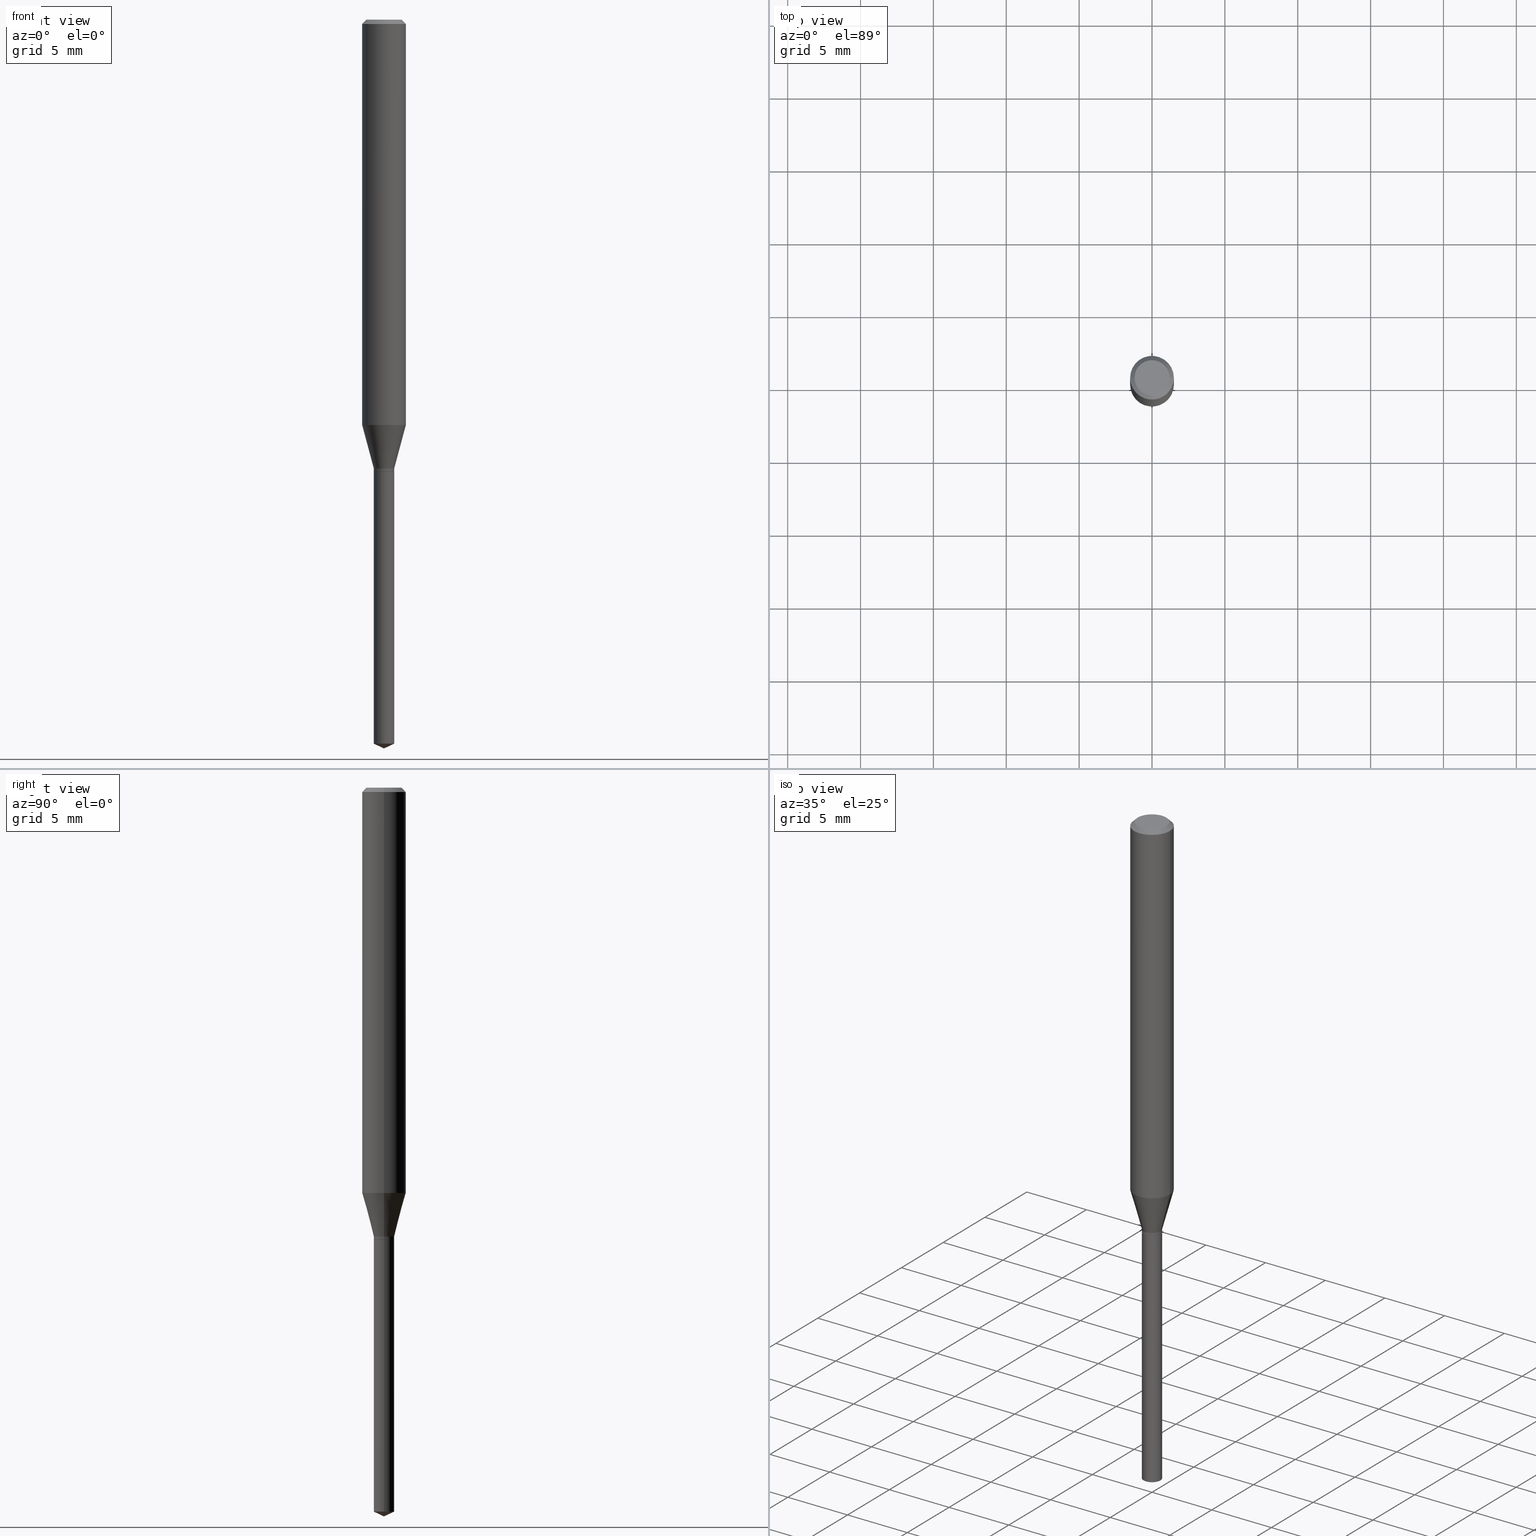
[diagram: canonical four-view strip — front | top / right | iso, engineering-drawing reading convention]
A machine part, canonical four-view strip (front | top / right | iso — engineering-drawing reading convention). The complete STEP part file that produces these views, byte-faithful:
ISO-10303-21;
HEADER;
FILE_DESCRIPTION (( 'STEP AP203' ),
    '1' );
FILE_NAME ('08163.STEP',
    '2024-04-24T13:38:31',
    ( '' ),
    ( '' ),
    'SwSTEP 2.0',
    'SolidWorks 2023',
    '' );
FILE_SCHEMA (( 'CONFIG_CONTROL_DESIGN' ));
ENDSEC;

DATA;
#1 = VERTEX_POINT ( 'NONE', #168 ) ;
#2 = ORIENTED_EDGE ( 'NONE', *, *, #242, .F. ) ;
#3 = DIRECTION ( 'NONE',  ( 1.000000000000000000, -6.982962677686266711E-15, 4.876176775795936353E-29 ) ) ;
#4 = ORIENTED_EDGE ( 'NONE', *, *, #289, .T. ) ;
#5 = PRODUCT_DEFINITION_SHAPE ( 'NONE', 'NONE',  #421 ) ;
#6 = EDGE_CURVE ( 'NONE', #427, #322, #435, .T. ) ;
#7 = FACE_OUTER_BOUND ( 'NONE', #396, .T. ) ;
#8 = MECHANICAL_CONTEXT ( 'NONE', #92, 'mechanical' ) ;
#9 = MANIFOLD_SOLID_BREP ( 'Body-Move/Copy2[1]', #409 ) ;
#10 = AXIS2_PLACEMENT_3D ( 'NONE', #323, #432, #29 ) ;
#11 = CARTESIAN_POINT ( 'NONE',  ( -0.02755000000000001892, -4.051981673134663170E-15, -1.220500000000000140 ) ) ;
#12 = DIRECTION ( 'NONE',  ( -2.445468806185136877E-29, 3.491481338843145188E-15, 1.000000000000000000 ) ) ;
#13 = CARTESIAN_POINT ( 'NONE',  ( 0.02755000000000001892, -4.453733595828316609E-15, -1.220500000000000140 ) ) ;
#14 = CARTESIAN_POINT ( 'NONE',  ( 0.05905000000000006771, -4.123439461173745257E-16, 2.879382386107503723E-30 ) ) ;
#15 = CARTESIAN_POINT ( 'NONE',  ( -0.05905000000000013710, -3.404086783016143258E-15, -1.095140399561580269 ) ) ;
#16 = DIRECTION ( 'NONE',  ( -2.445468806185136597E-29, 3.491481338843145583E-15, 1.000000000000000000 ) ) ;
#17 = AXIS2_PLACEMENT_3D ( 'NONE', #174, #408, #139 ) ;
#18 = CIRCLE ( 'NONE', #230, 0.05905000000000013710 ) ;
#19 = CARTESIAN_POINT ( 'NONE',  ( 2.965620021260715020E-29, -4.234119419615082783E-15, -1.212700000000000111 ) ) ;
#20 = ORIENTED_EDGE ( 'NONE', *, *, #129, .F. ) ;
#21 = APPROVAL_DATE_TIME ( #374, #328 ) ;
#22 = ORIENTED_EDGE ( 'NONE', *, *, #218, .F. ) ;
#23 = EDGE_LOOP ( 'NONE', ( #45, #425, #235, #284 ) ) ;
#24 = AXIS2_PLACEMENT_3D ( 'NONE', #111, #384, #298 ) ;
#25 = CIRCLE ( 'NONE', #488, 0.02755000000000001545 ) ;
#26 = COORDINATED_UNIVERSAL_TIME_OFFSET ( 5, 0, .BEHIND. ) ;
#27 = ORIENTED_EDGE ( 'NONE', *, *, #334, .F. ) ;
#28 = DIRECTION ( 'NONE',  ( 1.000000000000000000, -6.982962677686270655E-15, 0.000000000000000000 ) ) ;
#29 = DIRECTION ( 'NONE',  ( 1.000000000000000000, -6.982962677686256455E-15, 0.000000000000000000 ) ) ;
#30 = CARTESIAN_POINT ( 'NONE',  ( 4.815128079378533515E-29, -6.874726756182153211E-15, -1.968999999999999861 ) ) ;
#31 = CIRCLE ( 'NONE', #243, 0.02705000000000000113 ) ;
#32 = VERTEX_POINT ( 'NONE', #353 ) ;
#33 = DIRECTION ( 'NONE',  ( -2.445468806185136597E-29, 3.491481338843145583E-15, 1.000000000000000000 ) ) ;
#34 = ORIENTED_EDGE ( 'NONE', *, *, #289, .F. ) ;
#35 = APPROVAL_DATE_TIME ( #140, #66 ) ;
#36 = ADVANCED_FACE ( 'NONE', ( #125 ), #241, .T. ) ;
#37 = VECTOR ( 'NONE', #178, 39.37007874015747433 ) ;
#38 = CONICAL_SURFACE ( 'NONE', #397, 0.05904999999999999832, 0.7853981633974452814 ) ;
#39 = ORIENTED_EDGE ( 'NONE', *, *, #372, .T. ) ;
#40 = ORIENTED_EDGE ( 'NONE', *, *, #271, .T. ) ;
#41 = LINE ( 'NONE', #46, #133 ) ;
#42 = VERTEX_POINT ( 'NONE', #15 ) ;
#43 = ORIENTED_EDGE ( 'NONE', *, *, #248, .F. ) ;
#44 = DIRECTION ( 'NONE',  ( 0.000000000000000000, 0.000000000000000000, 1.000000000000000000 ) ) ;
#45 = ORIENTED_EDGE ( 'NONE', *, *, #319, .F. ) ;
#46 = CARTESIAN_POINT ( 'NONE',  ( -0.05904999999999999832, 3.711095515056362547E-16, -0.01181000000000007044 ) ) ;
#47 = AXIS2_PLACEMENT_3D ( 'NONE', #72, #420, #220 ) ;
#48 = LINE ( 'NONE', #89, #115 ) ;
#49 = CARTESIAN_POINT ( 'NONE',  ( -0.05905000000000006771, 4.195754854663396409E-16, -2.904631170795525045E-30 ) ) ;
#50 = LINE ( 'NONE', #236, #239 ) ;
#51 = VERTEX_POINT ( 'NONE', #206 ) ;
#52 = EDGE_LOOP ( 'NONE', ( #75, #88, #273 ) ) ;
#53 = DIRECTION ( 'NONE',  ( -2.445468806185136597E-29, 3.491481338843145583E-15, 1.000000000000000000 ) ) ;
#54 = EDGE_CURVE ( 'NONE', #42, #165, #388, .T. ) ;
#55 = EDGE_LOOP ( 'NONE', ( #331, #39 ) ) ;
#56 = CLOSED_SHELL ( 'NONE', ( #302, #269, #194, #177, #154, #400, #190, #392, #296, #278, #166, #101 ) ) ;
#57 = DIRECTION ( 'NONE',  ( 1.000000000000000000, -6.982962677686270655E-15, 0.000000000000000000 ) ) ;
#58 = VECTOR ( 'NONE', #12, 39.37007874015748143 ) ;
#59 = UNCERTAINTY_MEASURE_WITH_UNIT (LENGTH_MEASURE( 1.000000000000000082E-05 ), #426, 'distance_accuracy_value', 'NONE');
#60 = ORIENTED_EDGE ( 'NONE', *, *, #141, .T. ) ;
#61 = EDGE_CURVE ( 'NONE', #32, #121, #123, .T. ) ;
#62 = DATE_TIME_ROLE ( 'creation_date' ) ;
#63 = DIRECTION ( 'NONE',  ( -2.445468806185136597E-29, 3.491481338843145583E-15, 1.000000000000000000 ) ) ;
#64 = DIRECTION ( 'NONE',  ( 1.000000000000000000, -6.982962677686274599E-15, 0.000000000000000000 ) ) ;
#65 = CALENDAR_DATE ( 2024, 24, 4 ) ;
#66 = APPROVAL ( #415, 'UNSPECIFIED' ) ;
#67 = PERSON_AND_ORGANIZATION_ROLE ( 'design_supplier' ) ;
#68 = AXIS2_PLACEMENT_3D ( 'NONE', #416, #78, #192 ) ;
#69 = AXIS2_PLACEMENT_3D ( 'NONE', #90, #53, #382 ) ;
#70 = APPLICATION_PROTOCOL_DEFINITION ( 'international standard', 'config_control_design', 1994, #210 ) ;
#71 = CARTESIAN_POINT ( 'NONE',  ( 4.815128079378533515E-29, -6.874726756182153211E-15, -1.968999999999999861 ) ) ;
#72 = CARTESIAN_POINT ( 'NONE',  ( 2.965620021260715020E-29, -4.234119419615082783E-15, -1.212700000000000111 ) ) ;
#73 = CALENDAR_DATE ( 2024, 24, 4 ) ;
#74 = ORIENTED_EDGE ( 'NONE', *, *, #54, .F. ) ;
#75 = ORIENTED_EDGE ( 'NONE', *, *, #286, .F. ) ;
#76 = EDGE_LOOP ( 'NONE', ( #439, #456, #22, #153 ) ) ;
#77 = AXIS2_PLACEMENT_3D ( 'NONE', #279, #16, #82 ) ;
#78 = DIRECTION ( 'NONE',  ( -2.445468806185136597E-29, 3.491481338843145583E-15, 1.000000000000000000 ) ) ;
#79 = FACE_OUTER_BOUND ( 'NONE', #267, .T. ) ;
#80 = DIRECTION ( 'NONE',  ( 1.000000000000000000, -6.982962677686269866E-15, 0.000000000000000000 ) ) ;
#81 = PERSON ( 'UNSPECIFIED', 'UNSPECIFIED', 'UNSPECIFIED', ('UNSPECIFIED'), ('UNSPECIFIED'), ('UNSPECIFIED') ) ;
#82 = DIRECTION ( 'NONE',  ( 1.000000000000000000, -6.982962677686265922E-15, 4.876176775795936353E-29 ) ) ;
#83 = ORIENTED_EDGE ( 'NONE', *, *, #483, .T. ) ;
#84 = SECURITY_CLASSIFICATION ( '', '', #146 ) ;
#85 = DIRECTION ( 'NONE',  ( 1.000000000000000000, -6.982962677686264344E-15, 0.000000000000000000 ) ) ;
#86 = CARTESIAN_POINT ( 'NONE',  ( 2.984694677948959472E-29, -4.261352974058059816E-15, -1.220500000000000140 ) ) ;
#87 = CYLINDRICAL_SURFACE ( 'NONE', #77, 0.02755000000000001545 ) ;
#88 = ORIENTED_EDGE ( 'NONE', *, *, #224, .T. ) ;
#89 = CARTESIAN_POINT ( 'NONE',  ( -0.02755000000000001545, -4.038364895913174653E-15, -1.212700000000000111 ) ) ;
#90 = CARTESIAN_POINT ( 'NONE',  ( 2.984694677948959472E-29, -4.261352974058059816E-15, -1.220500000000000140 ) ) ;
#91 = ORIENTED_EDGE ( 'NONE', *, *, #61, .T. ) ;
#92 = APPLICATION_CONTEXT ( 'configuration controlled 3d designs of mechanical parts and assemblies' ) ;
#93 = DIRECTION ( 'NONE',  ( -1.000000000000000000, 6.982962677686266711E-15, 0.000000000000000000 ) ) ;
#94 = ORIENTED_EDGE ( 'NONE', *, *, #446, .T. ) ;
#95 = DIRECTION ( 'NONE',  ( -2.445468806185136597E-29, 3.491481338843145583E-15, 1.000000000000000000 ) ) ;
#96 = CONICAL_SURFACE ( 'NONE', #299, 0.02705000000000000113, 0.7853981633974311816 ) ;
#97 = ORIENTED_EDGE ( 'NONE', *, *, #286, .T. ) ;
#98 = EDGE_CURVE ( 'NONE', #343, #290, #113, .T. ) ;
#99 = CIRCLE ( 'NONE', #377, 0.05904999999999999832 ) ;
#100 = APPROVAL_PERSON_ORGANIZATION ( #460, #66, #263 ) ;
#101 = ADVANCED_FACE ( 'NONE', ( #130 ), #96, .T. ) ;
#102 = LENGTH_MEASURE_WITH_UNIT ( LENGTH_MEASURE( 0.02539999999999999897 ), #132 );
#103 = DIRECTION ( 'NONE',  ( 0.9063077870366559319, -4.853149677051466353E-15, 0.4226182617406865627 ) ) ;
#104 = ORIENTED_EDGE ( 'NONE', *, *, #184, .F. ) ;
#105 = CARTESIAN_POINT ( 'NONE',  ( 4.132873053354867254E-48, -5.900647395337818946E-34, -1.690012582823346072E-19 ) ) ;
#106 = ORIENTED_EDGE ( 'NONE', *, *, #465, .F. ) ;
#107 = AXIS2_PLACEMENT_3D ( 'NONE', #231, #391, #157 ) ;
#108 = AXIS2_PLACEMENT_3D ( 'NONE', #176, #484, #138 ) ;
#109 = DIRECTION ( 'NONE',  ( -0.7071067811865453523, 2.468850131082234184E-15, -0.7071067811865496822 ) ) ;
#110 = CARTESIAN_POINT ( 'NONE',  ( 0.000000000000000000, 0.000000000000000000, 0.000000000000000000 ) ) ;
#111 = CARTESIAN_POINT ( 'NONE',  ( 2.985917412352052273E-29, -4.263098714727481320E-15, -1.221000000000000085 ) ) ;
#112 = VERTEX_POINT ( 'NONE', #431 ) ;
#113 = CIRCLE ( 'NONE', #362, 0.02755000000000000157 ) ;
#114 = FACE_OUTER_BOUND ( 'NONE', #376, .T. ) ;
#115 = VECTOR ( 'NONE', #351, 39.37007874015747433 ) ;
#116 = ORIENTED_EDGE ( 'NONE', *, *, #319, .T. ) ;
#117 = EDGE_CURVE ( 'NONE', #121, #311, #471, .T. ) ;
#118 = CARTESIAN_POINT ( 'NONE',  ( 0.05905000000000013710, -4.236006214599858855E-15, -1.095140399561580269 ) ) ;
#119 = CARTESIAN_POINT ( 'NONE',  ( 2.678131685520970717E-29, -3.823662268482483934E-15, -1.095140399561580269 ) ) ;
#120 = CIRCLE ( 'NONE', #208, 0.04724000000000000421 ) ;
#121 = VERTEX_POINT ( 'NONE', #11 ) ;
#122 =( GEOMETRIC_REPRESENTATION_CONTEXT ( 3 ) GLOBAL_UNCERTAINTY_ASSIGNED_CONTEXT ( ( #59 ) ) GLOBAL_UNIT_ASSIGNED_CONTEXT ( ( #426, #282, #274 ) ) REPRESENTATION_CONTEXT ( 'NONE', 'WORKASPACE' ) );
#123 = LINE ( 'NONE', #158, #306 ) ;
#124 = CARTESIAN_POINT ( 'NONE',  ( 2.985917412352051713E-29, -4.263098714727481320E-15, -1.221000000000000085 ) ) ;
#125 = FACE_OUTER_BOUND ( 'NONE', #270, .T. ) ;
#126 = CARTESIAN_POINT ( 'NONE',  ( 0.02705000000000000113, -4.451987855158895106E-15, -1.221000000000000085 ) ) ;
#127 = AXIS2_PLACEMENT_3D ( 'NONE', #403, #211, #57 ) ;
#128 = APPROVAL_STATUS ( 'not_yet_approved' ) ;
#129 = EDGE_CURVE ( 'NONE', #1, #463, #149, .T. ) ;
#130 = FACE_OUTER_BOUND ( 'NONE', #355, .T. ) ;
#131 = DIRECTION ( 'NONE',  ( 1.000000000000000000, -6.982962677686273810E-15, 0.000000000000000000 ) ) ;
#132 =( LENGTH_UNIT ( ) NAMED_UNIT ( * ) SI_UNIT ( $, .METRE. ) );
#133 = VECTOR ( 'NONE', #109, 39.37007874015748143 ) ;
#134 = DIRECTION ( 'NONE',  ( -0.9063077870366559319, 7.915267918739013053E-15, 0.4226182617406865627 ) ) ;
#135 = VECTOR ( 'NONE', #134, 39.37007874015748143 ) ;
#136 = CARTESIAN_POINT ( 'NONE',  ( 0.02755000000000000157, -4.455479336497738113E-15, -1.221000000000000085 ) ) ;
#137 = DIRECTION ( 'NONE',  ( -2.445468806185136597E-29, 3.491481338843145583E-15, 1.000000000000000000 ) ) ;
#138 = DIRECTION ( 'NONE',  ( 1.000000000000000000, -6.982962677686256455E-15, 0.000000000000000000 ) ) ;
#139 = DIRECTION ( 'NONE',  ( 1.000000000000000000, -6.982962677686265922E-15, 0.000000000000000000 ) ) ;
#140 = DATE_AND_TIME ( #486, #370 ) ;
#141 = EDGE_CURVE ( 'NONE', #343, #112, #424, .T. ) ;
#142 = CONICAL_SURFACE ( 'NONE', #68, 0.02755000000000001545, 0.2617993877991500740 ) ;
#143 = CARTESIAN_POINT ( 'NONE',  ( 8.265746106709734507E-48, -1.180129479067563789E-33, -3.380025165646692144E-19 ) ) ;
#144 = SHAPE_DEFINITION_REPRESENTATION ( #5, #293 ) ;
#145 = CARTESIAN_POINT ( 'NONE',  ( 0.000000000000000000, 0.000000000000000000, 0.000000000000000000 ) ) ;
#146 = SECURITY_CLASSIFICATION_LEVEL ( 'unclassified' ) ;
#147 = ORIENTED_EDGE ( 'NONE', *, *, #218, .T. ) ;
#148 = CC_DESIGN_PERSON_AND_ORGANIZATION_ASSIGNMENT ( #257, #490, ( #84 ) ) ;
#149 = CIRCLE ( 'NONE', #450, 0.04724000000000000421 ) ;
#150 = DIRECTION ( 'NONE',  ( -2.445468806185136597E-29, 3.491481338843145583E-15, 1.000000000000000000 ) ) ;
#151 = PLANE ( 'NONE',  #276 ) ;
#152 = AXIS2_PLACEMENT_3D ( 'NONE', #352, #466, #472 ) ;
#153 = ORIENTED_EDGE ( 'NONE', *, *, #383, .F. ) ;
#154 = ADVANCED_FACE ( 'NONE', ( #461 ), #265, .T. ) ;
#155 = ORIENTED_EDGE ( 'NONE', *, *, #6, .F. ) ;
#156 = ORIENTED_EDGE ( 'NONE', *, *, #184, .T. ) ;
#157 = DIRECTION ( 'NONE',  ( 1.000000000000000000, -6.982962677686266711E-15, 4.876176775795936353E-29 ) ) ;
#158 = CARTESIAN_POINT ( 'NONE',  ( -0.02705000000000000113, -4.070896904704374088E-15, -1.221000000000000085 ) ) ;
#159 = EDGE_LOOP ( 'NONE', ( #262, #20, #156, #399 ) ) ;
#160 = CIRCLE ( 'NONE', #127, 0.02755000000000001545 ) ;
#161 = CARTESIAN_POINT ( 'NONE',  ( -9.146317137672921654E-28, 1.305851684738629534E-13, 37.40107874015748024 ) ) ;
#162 = ORIENTED_EDGE ( 'NONE', *, *, #129, .T. ) ;
#163 = CARTESIAN_POINT ( 'NONE',  ( -1.241355789325234806E-29, -1.031679454097805354E-14, -1.221000000000000085 ) ) ;
#164 = CC_DESIGN_PERSON_AND_ORGANIZATION_ASSIGNMENT ( #440, #212, ( #421 ) ) ;
#165 = VERTEX_POINT ( 'NONE', #254 ) ;
#166 = ADVANCED_FACE ( 'NONE', ( #7 ), #458, .F. ) ;
#167 = APPROVAL_ROLE ( '' ) ;
#168 = CARTESIAN_POINT ( 'NONE',  ( -0.04724000000000000421, 3.504923541997677355E-16, -3.380025165670481712E-19 ) ) ;
#169 = LOCAL_TIME ( 9, 38, 31.00000000000000000, #26 ) ;
#170 = CC_DESIGN_SECURITY_CLASSIFICATION ( #84, ( #386 ) ) ;
#171 = CALENDAR_DATE ( 2024, 24, 4 ) ;
#172 = CARTESIAN_POINT ( 'NONE',  ( 0.05904999999999999832, -4.535783407291118600E-16, -0.01181000000000007044 ) ) ;
#173 = PERSON_AND_ORGANIZATION ( #81, #404 ) ;
#174 = CARTESIAN_POINT ( 'NONE',  ( -9.146317137672921654E-28, 1.305851684738629534E-13, 37.40107874015748024 ) ) ;
#175 = AXIS2_PLACEMENT_3D ( 'NONE', #366, #137, #213 ) ;
#176 = CARTESIAN_POINT ( 'NONE',  ( 4.783711689454089420E-29, -6.829872477576109136E-15, -1.956153224017830317 ) ) ;
#177 = ADVANCED_FACE ( 'NONE', ( #226 ), #142, .T. ) ;
#178 = DIRECTION ( 'NONE',  ( 0.2588190451025213501, 1.565188264969621968E-15, 0.9659258262890682012 ) ) ;
#179 = DATE_AND_TIME ( #449, #470 ) ;
#180 = ORIENTED_EDGE ( 'NONE', *, *, #446, .F. ) ;
#181 = AXIS2_PLACEMENT_3D ( 'NONE', #479, #316, #295 ) ;
#182 = DIRECTION ( 'NONE',  ( -2.445468806185136877E-29, 3.491481338843145188E-15, 1.000000000000000000 ) ) ;
#183 = ORIENTED_EDGE ( 'NONE', *, *, #61, .F. ) ;
#184 = EDGE_CURVE ( 'NONE', #1, #165, #41, .T. ) ;
#185 = ORIENTED_EDGE ( 'NONE', *, *, #326, .T. ) ;
#186 = CARTESIAN_POINT ( 'NONE',  ( 0.000000000000000000, 0.000000000000000000, 0.000000000000000000 ) ) ;
#187 = CC_DESIGN_DATE_AND_TIME_ASSIGNMENT ( #438, #62, ( #421 ) ) ;
#188 = DIRECTION ( 'NONE',  ( -2.445468806185136877E-29, 3.491481338843145188E-15, 1.000000000000000000 ) ) ;
#189 = FACE_OUTER_BOUND ( 'NONE', #55, .T. ) ;
#190 = ADVANCED_FACE ( 'NONE', ( #412 ), #251, .T. ) ;
#191 = AXIS2_PLACEMENT_3D ( 'NONE', #124, #63, #436 ) ;
#192 = DIRECTION ( 'NONE',  ( 1.000000000000000000, -6.982962677686270655E-15, 0.000000000000000000 ) ) ;
#193 = CC_DESIGN_APPROVAL ( #328, ( #421 ) ) ;
#194 = ADVANCED_FACE ( 'NONE', ( #373 ), #345, .T. ) ;
#195 = FACE_OUTER_BOUND ( 'NONE', #250, .T. ) ;
#196 = DIRECTION ( 'NONE',  ( -2.445468806185136597E-29, 3.491481338843145583E-15, 1.000000000000000000 ) ) ;
#197 = DIRECTION ( 'NONE',  ( -1.000000000000000000, 6.982962677686265922E-15, -4.876176775795935793E-29 ) ) ;
#198 = CARTESIAN_POINT ( 'NONE',  ( 0.02755000000000001545, -1.923806217702567437E-16, 1.343386701731781209E-30 ) ) ;
#199 = ORIENTED_EDGE ( 'NONE', *, *, #141, .F. ) ;
#200 = ORIENTED_EDGE ( 'NONE', *, *, #117, .F. ) ;
#201 = CIRCLE ( 'NONE', #10, 0.02755000000000000157 ) ;
#202 = EDGE_CURVE ( 'NONE', #463, #1, #120, .T. ) ;
#203 = VERTEX_POINT ( 'NONE', #118 ) ;
#204 = DIRECTION ( 'NONE',  ( -2.445468806185136597E-29, 3.491481338843145583E-15, 1.000000000000000000 ) ) ;
#205 = ADVANCED_FACE ( 'NONE', ( #315 ), #445, .T. ) ;
#206 = CARTESIAN_POINT ( 'NONE',  ( 0.02755000000000001545, -4.426500041385339576E-15, -1.212700000000000111 ) ) ;
#207 = EDGE_LOOP ( 'NONE', ( #418, #227, #34, #27 ) ) ;
#208 = AXIS2_PLACEMENT_3D ( 'NONE', #381, #454, #390 ) ;
#209 = CIRCLE ( 'NONE', #108, 0.02755000000000000157 ) ;
#210 = APPLICATION_CONTEXT ( 'configuration controlled 3d designs of mechanical parts and assemblies' ) ;
#211 = DIRECTION ( 'NONE',  ( -2.445468806185136597E-29, 3.491481338843145583E-15, 1.000000000000000000 ) ) ;
#212 = PERSON_AND_ORGANIZATION_ROLE ( 'creator' ) ;
#213 = DIRECTION ( 'NONE',  ( 1.000000000000000000, -6.982962677686256455E-15, 0.000000000000000000 ) ) ;
#214 = DIRECTION ( 'NONE',  ( -2.445468806185136597E-29, 3.491481338843145583E-15, 1.000000000000000000 ) ) ;
#215 = VECTOR ( 'NONE', #188, 39.37007874015748143 ) ;
#216 = LINE ( 'NONE', #14, #58 ) ;
#217 = ORIENTED_EDGE ( 'NONE', *, *, #402, .F. ) ;
#218 = EDGE_CURVE ( 'NONE', #344, #165, #487, .T. ) ;
#219 = CARTESIAN_POINT ( 'NONE',  ( 2.888098660104663766E-31, -4.123439461173779647E-17, -0.01181000000000007044 ) ) ;
#220 = DIRECTION ( 'NONE',  ( 1.000000000000000000, -6.982962677686270655E-15, 0.000000000000000000 ) ) ;
#221 = EDGE_LOOP ( 'NONE', ( #162, #489 ) ) ;
#222 = CONICAL_SURFACE ( 'NONE', #17, 84.42940631927709205, 1.134464013796328441 ) ;
#223 = CIRCLE ( 'NONE', #369, 0.02705000000000000113 ) ;
#224 = EDGE_CURVE ( 'NONE', #303, #290, #485, .T. ) ;
#225 = CC_DESIGN_DATE_AND_TIME_ASSIGNMENT ( #179, #375, ( #84 ) ) ;
#226 = FACE_OUTER_BOUND ( 'NONE', #348, .T. ) ;
#227 = ORIENTED_EDGE ( 'NONE', *, *, #117, .T. ) ;
#228 = ORIENTED_EDGE ( 'NONE', *, *, #383, .T. ) ;
#229 = AXIS2_PLACEMENT_3D ( 'NONE', #145, #150, #304 ) ;
#230 = AXIS2_PLACEMENT_3D ( 'NONE', #119, #204, #281 ) ;
#231 = CARTESIAN_POINT ( 'NONE',  ( 0.000000000000000000, 0.000000000000000000, 0.000000000000000000 ) ) ;
#232 = DIRECTION ( 'NONE',  ( 0.7071067811865353603, -2.468850131082130054E-15, 0.7071067811865595631 ) ) ;
#233 = LINE ( 'NONE', #389, #321 ) ;
#234 = LINE ( 'NONE', #198, #215 ) ;
#235 = ORIENTED_EDGE ( 'NONE', *, *, #242, .T. ) ;
#236 = CARTESIAN_POINT ( 'NONE',  ( 0.05904999999999999832, -4.463468013801466955E-16, -0.01181000000000007044 ) ) ;
#237 = DIRECTION ( 'NONE',  ( -2.445468806185136877E-29, 3.491481338843145188E-15, 1.000000000000000000 ) ) ;
#238 = FACE_OUTER_BOUND ( 'NONE', #221, .T. ) ;
#239 = VECTOR ( 'NONE', #393, 39.37007874015748143 ) ;
#240 = CC_DESIGN_PERSON_AND_ORGANIZATION_ASSIGNMENT ( #173, #325, ( #386 ) ) ;
#241 = CYLINDRICAL_SURFACE ( 'NONE', #191, 0.02755000000000000157 ) ;
#242 = EDGE_CURVE ( 'NONE', #51, #203, #367, .T. ) ;
#243 = AXIS2_PLACEMENT_3D ( 'NONE', #297, #447, #131 ) ;
#244 = CARTESIAN_POINT ( 'NONE',  ( 0.02755000000000001545, -4.426500041385339576E-15, -1.212700000000000111 ) ) ;
#245 = COORDINATED_UNIVERSAL_TIME_OFFSET ( 5, 0, .BEHIND. ) ;
#246 = CC_DESIGN_PERSON_AND_ORGANIZATION_ASSIGNMENT ( #308, #249, ( #394 ) ) ;
#247 = DESIGN_CONTEXT ( 'detailed design', #210, 'design' ) ;
#248 = EDGE_CURVE ( 'NONE', #165, #344, #99, .T. ) ;
#249 = PERSON_AND_ORGANIZATION_ROLE ( 'design_owner' ) ;
#250 = EDGE_LOOP ( 'NONE', ( #40, #91, #417, #155 ) ) ;
#251 = CONICAL_SURFACE ( 'NONE', #47, 0.02755000000000001545, 0.2617993877991500740 ) ;
#252 = DIRECTION ( 'NONE',  ( -1.000000000000000000, 6.982962677686265922E-15, -4.876176775795935793E-29 ) ) ;
#253 = CIRCLE ( 'NONE', #175, 0.02755000000000000157 ) ;
#254 = CARTESIAN_POINT ( 'NONE',  ( -0.05904999999999999832, -1.512872846080770352E-15, -0.01181000000000007044 ) ) ;
#255 = APPROVAL_ROLE ( '' ) ;
#256 = FACE_OUTER_BOUND ( 'NONE', #159, .T. ) ;
#257 = PERSON_AND_ORGANIZATION ( #81, #404 ) ;
#258 = ADVANCED_FACE ( 'NONE', ( #283 ), #222, .T. ) ;
#259 = DIRECTION ( 'NONE',  ( 1.000000000000000000, -6.982962677686266711E-15, 4.876185090822587894E-29 ) ) ;
#260 = ORIENTED_EDGE ( 'NONE', *, *, #98, .T. ) ;
#261 = DIRECTION ( 'NONE',  ( 1.000000000000000000, 0.000000000000000000, 0.000000000000000000 ) ) ;
#262 = ORIENTED_EDGE ( 'NONE', *, *, #326, .F. ) ;
#263 = APPROVAL_ROLE ( '' ) ;
#264 = CONICAL_SURFACE ( 'NONE', #422, 0.05904999999999999832, 0.7853981633974452814 ) ;
#265 = CYLINDRICAL_SURFACE ( 'NONE', #229, 0.02755000000000001545 ) ;
#266 = CYLINDRICAL_SURFACE ( 'NONE', #107, 0.05905000000000006771 ) ;
#267 = EDGE_LOOP ( 'NONE', ( #200, #423, #481, #462 ) ) ;
#268 = DIRECTION ( 'NONE',  ( -2.445468806185136877E-29, 3.491481338843145188E-15, 1.000000000000000000 ) ) ;
#269 = ADVANCED_FACE ( 'NONE', ( #364 ), #38, .T. ) ;
#270 = EDGE_LOOP ( 'NONE', ( #478, #60, #459, #180 ) ) ;
#271 = EDGE_CURVE ( 'NONE', #427, #32, #223, .T. ) ;
#272 = DIRECTION ( 'NONE',  ( -2.445468806185136597E-29, 3.491481338843145583E-15, 1.000000000000000000 ) ) ;
#273 = ORIENTED_EDGE ( 'NONE', *, *, #98, .F. ) ;
#274 =( NAMED_UNIT ( * ) SI_UNIT ( $, .STERADIAN. ) SOLID_ANGLE_UNIT ( ) );
#275 = AXIS2_PLACEMENT_3D ( 'NONE', #385, #433, #64 ) ;
#276 = AXIS2_PLACEMENT_3D ( 'NONE', #163, #312, #197 ) ;
#277 = DIRECTION ( 'NONE',  ( 1.000000000000000000, -6.982962677686273810E-15, 0.000000000000000000 ) ) ;
#278 = ADVANCED_FACE ( 'NONE', ( #238 ), #448, .F. ) ;
#279 = CARTESIAN_POINT ( 'NONE',  ( 0.000000000000000000, 0.000000000000000000, 0.000000000000000000 ) ) ;
#280 = EDGE_LOOP ( 'NONE', ( #318, #185, #147, #104 ) ) ;
#281 = DIRECTION ( 'NONE',  ( 1.000000000000000000, -6.982962677686264344E-15, 0.000000000000000000 ) ) ;
#282 =( NAMED_UNIT ( * ) PLANE_ANGLE_UNIT ( ) SI_UNIT ( $, .RADIAN. ) );
#283 = FACE_OUTER_BOUND ( 'NONE', #52, .T. ) ;
#284 = ORIENTED_EDGE ( 'NONE', *, *, #419, .F. ) ;
#285 = ORIENTED_EDGE ( 'NONE', *, *, #271, .F. ) ;
#286 = EDGE_CURVE ( 'NONE', #303, #343, #411, .T. ) ;
#287 = CARTESIAN_POINT ( 'NONE',  ( 0.02705000000000000113, -4.451987855158895106E-15, -1.221000000000000085 ) ) ;
#288 = AXIS2_PLACEMENT_3D ( 'NONE', #105, #292, #252 ) ;
#289 = EDGE_CURVE ( 'NONE', #51, #311, #25, .T. ) ;
#290 = VERTEX_POINT ( 'NONE', #338 ) ;
#291 = EDGE_LOOP ( 'NONE', ( #199, #260, #94, #359 ) ) ;
#292 = DIRECTION ( 'NONE',  ( 2.438088387897960049E-29, -3.491481338843145188E-15, -1.000000000000000000 ) ) ;
#293 = ADVANCED_BREP_SHAPE_REPRESENTATION ( '08163', ( #9, #333, #410 ), #122 ) ;
#294 = APPROVAL_PERSON_ORGANIZATION ( #337, #328, #255 ) ;
#295 = DIRECTION ( 'NONE',  ( 1.000000000000000000, -6.982962677686266711E-15, 0.000000000000000000 ) ) ;
#296 = ADVANCED_FACE ( 'NONE', ( #256 ), #264, .T. ) ;
#297 = CARTESIAN_POINT ( 'NONE',  ( 2.985917412352052273E-29, -4.263098714727481320E-15, -1.221000000000000085 ) ) ;
#298 = DIRECTION ( 'NONE',  ( 1.000000000000000000, -6.982962677686265922E-15, 4.876176775795935793E-29 ) ) ;
#299 = AXIS2_PLACEMENT_3D ( 'NONE', #467, #196, #277 ) ;
#300 = AXIS2_PLACEMENT_3D ( 'NONE', #161, #314, #347 ) ;
#301 = DIRECTION ( 'NONE',  ( -2.445468806185136597E-29, 3.491481338843145583E-15, 1.000000000000000000 ) ) ;
#302 = ADVANCED_FACE ( 'NONE', ( #195 ), #342, .T. ) ;
#303 = VERTEX_POINT ( 'NONE', #469 ) ;
#304 = DIRECTION ( 'NONE',  ( 1.000000000000000000, -6.982962677686265922E-15, 4.876176775795936353E-29 ) ) ;
#305 = COORDINATED_UNIVERSAL_TIME_OFFSET ( 5, 0, .BEHIND. ) ;
#306 = VECTOR ( 'NONE', #358, 39.37007874015748854 ) ;
#307 = LOCAL_TIME ( 9, 38, 31.00000000000000000, #413 ) ;
#308 = PERSON_AND_ORGANIZATION ( #81, #404 ) ;
#309 = DIRECTION ( 'NONE',  ( 1.000000000000000000, -6.982962677686256455E-15, 0.000000000000000000 ) ) ;
#310 = APPROVAL_PERSON_ORGANIZATION ( #360, #480, #167 ) ;
#311 = VERTEX_POINT ( 'NONE', #434 ) ;
#312 = DIRECTION ( 'NONE',  ( 2.438088387897960049E-29, -3.491481338843145188E-15, -1.000000000000000000 ) ) ;
#313 = EDGE_CURVE ( 'NONE', #322, #121, #464, .T. ) ;
#314 = DIRECTION ( 'NONE',  ( -2.445468806185136597E-29, 3.491481338843145583E-15, 1.000000000000000000 ) ) ;
#315 = FACE_OUTER_BOUND ( 'NONE', #291, .T. ) ;
#316 = DIRECTION ( 'NONE',  ( -2.445468806185136597E-29, 3.491481338843145583E-15, 1.000000000000000000 ) ) ;
#317 = CARTESIAN_POINT ( 'NONE',  ( 2.678131685520970717E-29, -3.823662268482483934E-15, -1.095140399561580269 ) ) ;
#318 = ORIENTED_EDGE ( 'NONE', *, *, #202, .F. ) ;
#319 = EDGE_CURVE ( 'NONE', #311, #42, #48, .T. ) ;
#320 = DIRECTION ( 'NONE',  ( -2.445468806185136597E-29, 3.491481338843145583E-15, 1.000000000000000000 ) ) ;
#321 = VECTOR ( 'NONE', #406, 39.37007874015748143 ) ;
#322 = VERTEX_POINT ( 'NONE', #13 ) ;
#323 = CARTESIAN_POINT ( 'NONE',  ( 2.985917412352052273E-29, -4.263098714727481320E-15, -1.221000000000000085 ) ) ;
#324 = DIRECTION ( 'NONE',  ( 1.000000000000000000, -6.982962677686266711E-15, 0.000000000000000000 ) ) ;
#325 = PERSON_AND_ORGANIZATION_ROLE ( 'creator' ) ;
#326 = EDGE_CURVE ( 'NONE', #463, #344, #50, .T. ) ;
#327 = DIRECTION ( 'NONE',  ( -2.445468806185136597E-29, 3.491481338843145583E-15, 1.000000000000000000 ) ) ;
#328 = APPROVAL ( #453, 'UNSPECIFIED' ) ;
#329 = DIMENSIONAL_EXPONENTS ( 1.000000000000000000, 0.000000000000000000, 0.000000000000000000, 0.000000000000000000, 0.000000000000000000, 0.000000000000000000, 0.000000000000000000 ) ;
#330 = CONICAL_SURFACE ( 'NONE', #300, 84.42940631927709205, 1.134464013796328441 ) ;
#331 = ORIENTED_EDGE ( 'NONE', *, *, #457, .T. ) ;
#332 = DIRECTION ( 'NONE',  ( 1.000000000000000000, -6.982962677686273810E-15, 0.000000000000000000 ) ) ;
#333 = MANIFOLD_SOLID_BREP ( 'Body-Move/Copy2[2]', #56 ) ;
#334 = EDGE_CURVE ( 'NONE', #322, #51, #234, .T. ) ;
#335 = ADVANCED_FACE ( 'NONE', ( #354 ), #330, .T. ) ;
#336 = COORDINATED_UNIVERSAL_TIME_OFFSET ( 5, 0, .BEHIND. ) ;
#337 = PERSON_AND_ORGANIZATION ( #81, #404 ) ;
#338 = CARTESIAN_POINT ( 'NONE',  ( 0.02755000000000000157, -7.022253099346365929E-15, -1.956153224017830317 ) ) ;
#339 = PERSON_AND_ORGANIZATION ( #81, #404 ) ;
#340 = EDGE_CURVE ( 'NONE', #311, #51, #160, .T. ) ;
#341 = VECTOR ( 'NONE', #232, 39.37007874015748854 ) ;
#342 = CONICAL_SURFACE ( 'NONE', #152, 0.02705000000000000113, 0.7853981633974311816 ) ;
#343 = VERTEX_POINT ( 'NONE', #363 ) ;
#344 = VERTEX_POINT ( 'NONE', #172 ) ;
#345 = CYLINDRICAL_SURFACE ( 'NONE', #349, 0.05905000000000006771 ) ;
#346 = ORIENTED_EDGE ( 'NONE', *, *, #483, .F. ) ;
#347 = DIRECTION ( 'NONE',  ( 1.000000000000000000, -6.982962677686265922E-15, 0.000000000000000000 ) ) ;
#348 = EDGE_LOOP ( 'NONE', ( #4, #116, #401, #2 ) ) ;
#349 = AXIS2_PLACEMENT_3D ( 'NONE', #186, #33, #3 ) ;
#350 = CIRCLE ( 'NONE', #430, 0.05905000000000013710 ) ;
#351 = DIRECTION ( 'NONE',  ( -0.2588190451025213501, 5.211531920934551042E-15, 0.9659258262890682012 ) ) ;
#352 = CARTESIAN_POINT ( 'NONE',  ( 2.985917412352052273E-29, -4.263098714727481320E-15, -1.221000000000000085 ) ) ;
#353 = CARTESIAN_POINT ( 'NONE',  ( -0.02705000000000000113, -4.068247677530262887E-15, -1.221000000000000085 ) ) ;
#354 = FACE_OUTER_BOUND ( 'NONE', #442, .T. ) ;
#355 = EDGE_LOOP ( 'NONE', ( #183, #83, #475, #217 ) ) ;
#356 = CC_DESIGN_PERSON_AND_ORGANIZATION_ASSIGNMENT ( #339, #67, ( #386 ) ) ;
#357 = VECTOR ( 'NONE', #237, 39.37007874015748143 ) ;
#358 = DIRECTION ( 'NONE',  ( -0.7071067811865353603, 7.493145998870309984E-15, 0.7071067811865595631 ) ) ;
#359 = ORIENTED_EDGE ( 'NONE', *, *, #372, .F. ) ;
#360 = PERSON_AND_ORGANIZATION ( #81, #404 ) ;
#361 = CARTESIAN_POINT ( 'NONE',  ( 4.783711689454089420E-29, -6.829872477576109136E-15, -1.956153224017830317 ) ) ;
#362 = AXIS2_PLACEMENT_3D ( 'NONE', #361, #320, #309 ) ;
#363 = CARTESIAN_POINT ( 'NONE',  ( -0.02755000000000000157, -6.634117953874201795E-15, -1.956153224017830317 ) ) ;
#364 = FACE_OUTER_BOUND ( 'NONE', #280, .T. ) ;
#365 = DATE_AND_TIME ( #171, #169 ) ;
#366 = CARTESIAN_POINT ( 'NONE',  ( 2.985917412352052273E-29, -4.263098714727481320E-15, -1.221000000000000085 ) ) ;
#367 = LINE ( 'NONE', #244, #37 ) ;
#368 = VECTOR ( 'NONE', #182, 39.37007874015748143 ) ;
#369 = AXIS2_PLACEMENT_3D ( 'NONE', #371, #327, #332 ) ;
#370 = LOCAL_TIME ( 9, 38, 31.00000000000000000, #336 ) ;
#371 = CARTESIAN_POINT ( 'NONE',  ( 2.985917412352052273E-29, -4.263098714727481320E-15, -1.221000000000000085 ) ) ;
#372 = EDGE_CURVE ( 'NONE', #112, #379, #201, .T. ) ;
#373 = FACE_OUTER_BOUND ( 'NONE', #76, .T. ) ;
#374 = DATE_AND_TIME ( #73, #307 ) ;
#375 = DATE_TIME_ROLE ( 'classification_date' ) ;
#376 = EDGE_LOOP ( 'NONE', ( #74, #477, #228, #43 ) ) ;
#377 = AXIS2_PLACEMENT_3D ( 'NONE', #407, #214, #324 ) ;
#378 = AXIS2_PLACEMENT_3D ( 'NONE', #86, #272, #80 ) ;
#379 = VERTEX_POINT ( 'NONE', #136 ) ;
#380 = CARTESIAN_POINT ( 'NONE',  ( -0.02755000000000000157, -4.067344191025573190E-15, -1.221000000000000085 ) ) ;
#381 = CARTESIAN_POINT ( 'NONE',  ( 8.265746106709734507E-48, -1.180129479067563789E-33, -3.380025165646692144E-19 ) ) ;
#382 = DIRECTION ( 'NONE',  ( 1.000000000000000000, -6.982962677686269866E-15, 0.000000000000000000 ) ) ;
#383 = EDGE_CURVE ( 'NONE', #203, #344, #216, .T. ) ;
#384 = DIRECTION ( 'NONE',  ( -2.438088387897960049E-29, 3.491481338843145188E-15, 1.000000000000000000 ) ) ;
#385 = CARTESIAN_POINT ( 'NONE',  ( 2.985917412352051713E-29, -4.263098714727481320E-15, -1.221000000000000085 ) ) ;
#386 = PRODUCT_DEFINITION_FORMATION_WITH_SPECIFIED_SOURCE ( 'ANY', '', #394, .NOT_KNOWN. ) ;
#387 = CC_DESIGN_APPROVAL ( #66, ( #84 ) ) ;
#388 = LINE ( 'NONE', #49, #357 ) ;
#389 = CARTESIAN_POINT ( 'NONE',  ( 0.02755000000000000157, -4.455479336497738113E-15, -1.221000000000000085 ) ) ;
#390 = DIRECTION ( 'NONE',  ( 1.000000000000000000, -6.982962677686266711E-15, 4.876185090822587894E-29 ) ) ;
#391 = DIRECTION ( 'NONE',  ( -2.445468806185136597E-29, 3.491481338843145583E-15, 1.000000000000000000 ) ) ;
#392 = ADVANCED_FACE ( 'NONE', ( #114 ), #266, .T. ) ;
#393 = DIRECTION ( 'NONE',  ( 0.7071067811865453523, -7.319954787623248157E-15, -0.7071067811865496822 ) ) ;
#394 = PRODUCT ( '08163', '08163', '', ( #8 ) ) ;
#395 = CARTESIAN_POINT ( 'NONE',  ( -0.02755000000000001545, 1.957545237019077110E-16, -1.355166617365227266E-30 ) ) ;
#396 = EDGE_LOOP ( 'NONE', ( #285, #346 ) ) ;
#397 = AXIS2_PLACEMENT_3D ( 'NONE', #219, #482, #93 ) ;
#398 = DIRECTION ( 'NONE',  ( -2.445468806185136597E-29, 3.491481338843145583E-15, 1.000000000000000000 ) ) ;
#399 = ORIENTED_EDGE ( 'NONE', *, *, #248, .T. ) ;
#400 = ADVANCED_FACE ( 'NONE', ( #79 ), #87, .T. ) ;
#401 = ORIENTED_EDGE ( 'NONE', *, *, #429, .F. ) ;
#402 = EDGE_CURVE ( 'NONE', #121, #322, #444, .T. ) ;
#403 = CARTESIAN_POINT ( 'NONE',  ( 2.965620021260715020E-29, -4.234119419615082783E-15, -1.212700000000000111 ) ) ;
#404 = ORGANIZATION ( 'UNSPECIFIED', 'UNSPECIFIED', '' ) ;
#405 = ADVANCED_FACE ( 'NONE', ( #189 ), #151, .F. ) ;
#406 = DIRECTION ( 'NONE',  ( -2.445468806185136877E-29, 3.491481338843145188E-15, 1.000000000000000000 ) ) ;
#407 = CARTESIAN_POINT ( 'NONE',  ( 2.888098660104663766E-31, -4.123439461173779647E-17, -0.01181000000000007044 ) ) ;
#408 = DIRECTION ( 'NONE',  ( -2.445468806185136597E-29, 3.491481338843145583E-15, 1.000000000000000000 ) ) ;
#409 = CLOSED_SHELL ( 'NONE', ( #36, #335, #258, #205, #405 ) ) ;
#410 = AXIS2_PLACEMENT_3D ( 'NONE', #110, #44, #261 ) ;
#411 = LINE ( 'NONE', #71, #135 ) ;
#412 = FACE_OUTER_BOUND ( 'NONE', #23, .T. ) ;
#413 = COORDINATED_UNIVERSAL_TIME_OFFSET ( 5, 0, .BEHIND. ) ;
#414 = CARTESIAN_POINT ( 'NONE',  ( 2.888098660104663766E-31, -4.123439461173779647E-17, -0.01181000000000007044 ) ) ;
#415 = APPROVAL_STATUS ( 'not_yet_approved' ) ;
#416 = CARTESIAN_POINT ( 'NONE',  ( 2.965620021260715020E-29, -4.234119419615082783E-15, -1.212700000000000111 ) ) ;
#417 = ORIENTED_EDGE ( 'NONE', *, *, #313, .F. ) ;
#418 = ORIENTED_EDGE ( 'NONE', *, *, #313, .T. ) ;
#419 = EDGE_CURVE ( 'NONE', #42, #203, #18, .T. ) ;
#420 = DIRECTION ( 'NONE',  ( -2.445468806185136597E-29, 3.491481338843145583E-15, 1.000000000000000000 ) ) ;
#421 = PRODUCT_DEFINITION ( 'UNKNOWN', '', #386, #247 ) ;
#422 = AXIS2_PLACEMENT_3D ( 'NONE', #414, #451, #428 ) ;
#423 = ORIENTED_EDGE ( 'NONE', *, *, #402, .T. ) ;
#424 = LINE ( 'NONE', #380, #437 ) ;
#425 = ORIENTED_EDGE ( 'NONE', *, *, #340, .T. ) ;
#426 =( CONVERSION_BASED_UNIT ( 'INCH', #102 ) LENGTH_UNIT ( ) NAMED_UNIT ( #329 ) );
#427 = VERTEX_POINT ( 'NONE', #126 ) ;
#428 = DIRECTION ( 'NONE',  ( -1.000000000000000000, 6.982962677686266711E-15, 0.000000000000000000 ) ) ;
#429 = EDGE_CURVE ( 'NONE', #203, #42, #350, .T. ) ;
#430 = AXIS2_PLACEMENT_3D ( 'NONE', #317, #95, #85 ) ;
#431 = CARTESIAN_POINT ( 'NONE',  ( -0.02755000000000000157, -5.350731072449887887E-15, -1.221000000000000085 ) ) ;
#432 = DIRECTION ( 'NONE',  ( -2.445468806185136597E-29, 3.491481338843145583E-15, 1.000000000000000000 ) ) ;
#433 = DIRECTION ( 'NONE',  ( -2.445468806185136597E-29, 3.491481338843145583E-15, 1.000000000000000000 ) ) ;
#434 = CARTESIAN_POINT ( 'NONE',  ( -0.02755000000000001545, -4.051981673134663170E-15, -1.212700000000000111 ) ) ;
#435 = LINE ( 'NONE', #287, #341 ) ;
#436 = DIRECTION ( 'NONE',  ( 1.000000000000000000, -6.982962677686274599E-15, 0.000000000000000000 ) ) ;
#437 = VECTOR ( 'NONE', #268, 39.37007874015748143 ) ;
#438 = DATE_AND_TIME ( #65, #476 ) ;
#439 = ORIENTED_EDGE ( 'NONE', *, *, #429, .T. ) ;
#440 = PERSON_AND_ORGANIZATION ( #81, #404 ) ;
#441 = CARTESIAN_POINT ( 'NONE',  ( 0.04724000000000000421, -3.852183633974369345E-16, -3.380025165621689721E-19 ) ) ;
#442 = EDGE_LOOP ( 'NONE', ( #473, #97, #106 ) ) ;
#443 = APPROVAL_DATE_TIME ( #365, #480 ) ;
#444 = CIRCLE ( 'NONE', #69, 0.02755000000000001892 ) ;
#445 = CYLINDRICAL_SURFACE ( 'NONE', #275, 0.02755000000000000157 ) ;
#446 = EDGE_CURVE ( 'NONE', #290, #379, #233, .T. ) ;
#447 = DIRECTION ( 'NONE',  ( -2.445468806185136597E-29, 3.491481338843145583E-15, 1.000000000000000000 ) ) ;
#448 = PLANE ( 'NONE',  #288 ) ;
#449 = CALENDAR_DATE ( 2024, 24, 4 ) ;
#450 = AXIS2_PLACEMENT_3D ( 'NONE', #143, #301, #259 ) ;
#451 = DIRECTION ( 'NONE',  ( 2.445468806185136597E-29, -3.491481338843145583E-15, -1.000000000000000000 ) ) ;
#452 = CC_DESIGN_APPROVAL ( #480, ( #386 ) ) ;
#453 = APPROVAL_STATUS ( 'not_yet_approved' ) ;
#454 = DIRECTION ( 'NONE',  ( -2.445468806185136597E-29, 3.491481338843145583E-15, 1.000000000000000000 ) ) ;
#455 = APPLICATION_PROTOCOL_DEFINITION ( 'international standard', 'config_control_design', 1994, #92 ) ;
#456 = ORIENTED_EDGE ( 'NONE', *, *, #54, .T. ) ;
#457 = EDGE_CURVE ( 'NONE', #379, #112, #253, .T. ) ;
#458 = PLANE ( 'NONE',  #24 ) ;
#459 = ORIENTED_EDGE ( 'NONE', *, *, #457, .F. ) ;
#460 = PERSON_AND_ORGANIZATION ( #81, #404 ) ;
#461 = FACE_OUTER_BOUND ( 'NONE', #207, .T. ) ;
#462 = ORIENTED_EDGE ( 'NONE', *, *, #340, .F. ) ;
#463 = VERTEX_POINT ( 'NONE', #441 ) ;
#464 = CIRCLE ( 'NONE', #378, 0.02755000000000001892 ) ;
#465 = EDGE_CURVE ( 'NONE', #290, #343, #209, .T. ) ;
#466 = DIRECTION ( 'NONE',  ( -2.445468806185136597E-29, 3.491481338843145583E-15, 1.000000000000000000 ) ) ;
#467 = CARTESIAN_POINT ( 'NONE',  ( 2.985917412352052273E-29, -4.263098714727481320E-15, -1.221000000000000085 ) ) ;
#468 = VECTOR ( 'NONE', #103, 39.37007874015748143 ) ;
#469 = CARTESIAN_POINT ( 'NONE',  ( 4.815128079378533515E-29, -6.874726756182153211E-15, -1.968999999999999861 ) ) ;
#470 = LOCAL_TIME ( 9, 38, 31.00000000000000000, #305 ) ;
#471 = LINE ( 'NONE', #395, #368 ) ;
#472 = DIRECTION ( 'NONE',  ( 1.000000000000000000, -6.982962677686273810E-15, 0.000000000000000000 ) ) ;
#473 = ORIENTED_EDGE ( 'NONE', *, *, #224, .F. ) ;
#474 = PRODUCT_RELATED_PRODUCT_CATEGORY ( 'detail', '', ( #394 ) ) ;
#475 = ORIENTED_EDGE ( 'NONE', *, *, #6, .T. ) ;
#476 = LOCAL_TIME ( 9, 38, 31.00000000000000000, #245 ) ;
#477 = ORIENTED_EDGE ( 'NONE', *, *, #419, .T. ) ;
#478 = ORIENTED_EDGE ( 'NONE', *, *, #465, .T. ) ;
#479 = CARTESIAN_POINT ( 'NONE',  ( 2.888098660104663766E-31, -4.123439461173779647E-17, -0.01181000000000007044 ) ) ;
#480 = APPROVAL ( #128, 'UNSPECIFIED' ) ;
#481 = ORIENTED_EDGE ( 'NONE', *, *, #334, .T. ) ;
#482 = DIRECTION ( 'NONE',  ( 2.445468806185136597E-29, -3.491481338843145583E-15, -1.000000000000000000 ) ) ;
#483 = EDGE_CURVE ( 'NONE', #32, #427, #31, .T. ) ;
#484 = DIRECTION ( 'NONE',  ( -2.445468806185136597E-29, 3.491481338843145583E-15, 1.000000000000000000 ) ) ;
#485 = LINE ( 'NONE', #30, #468 ) ;
#486 = CALENDAR_DATE ( 2024, 24, 4 ) ;
#487 = CIRCLE ( 'NONE', #181, 0.05904999999999999832 ) ;
#488 = AXIS2_PLACEMENT_3D ( 'NONE', #19, #398, #28 ) ;
#489 = ORIENTED_EDGE ( 'NONE', *, *, #202, .T. ) ;
#490 = PERSON_AND_ORGANIZATION_ROLE ( 'classification_officer' ) ;
ENDSEC;
END-ISO-10303-21;
